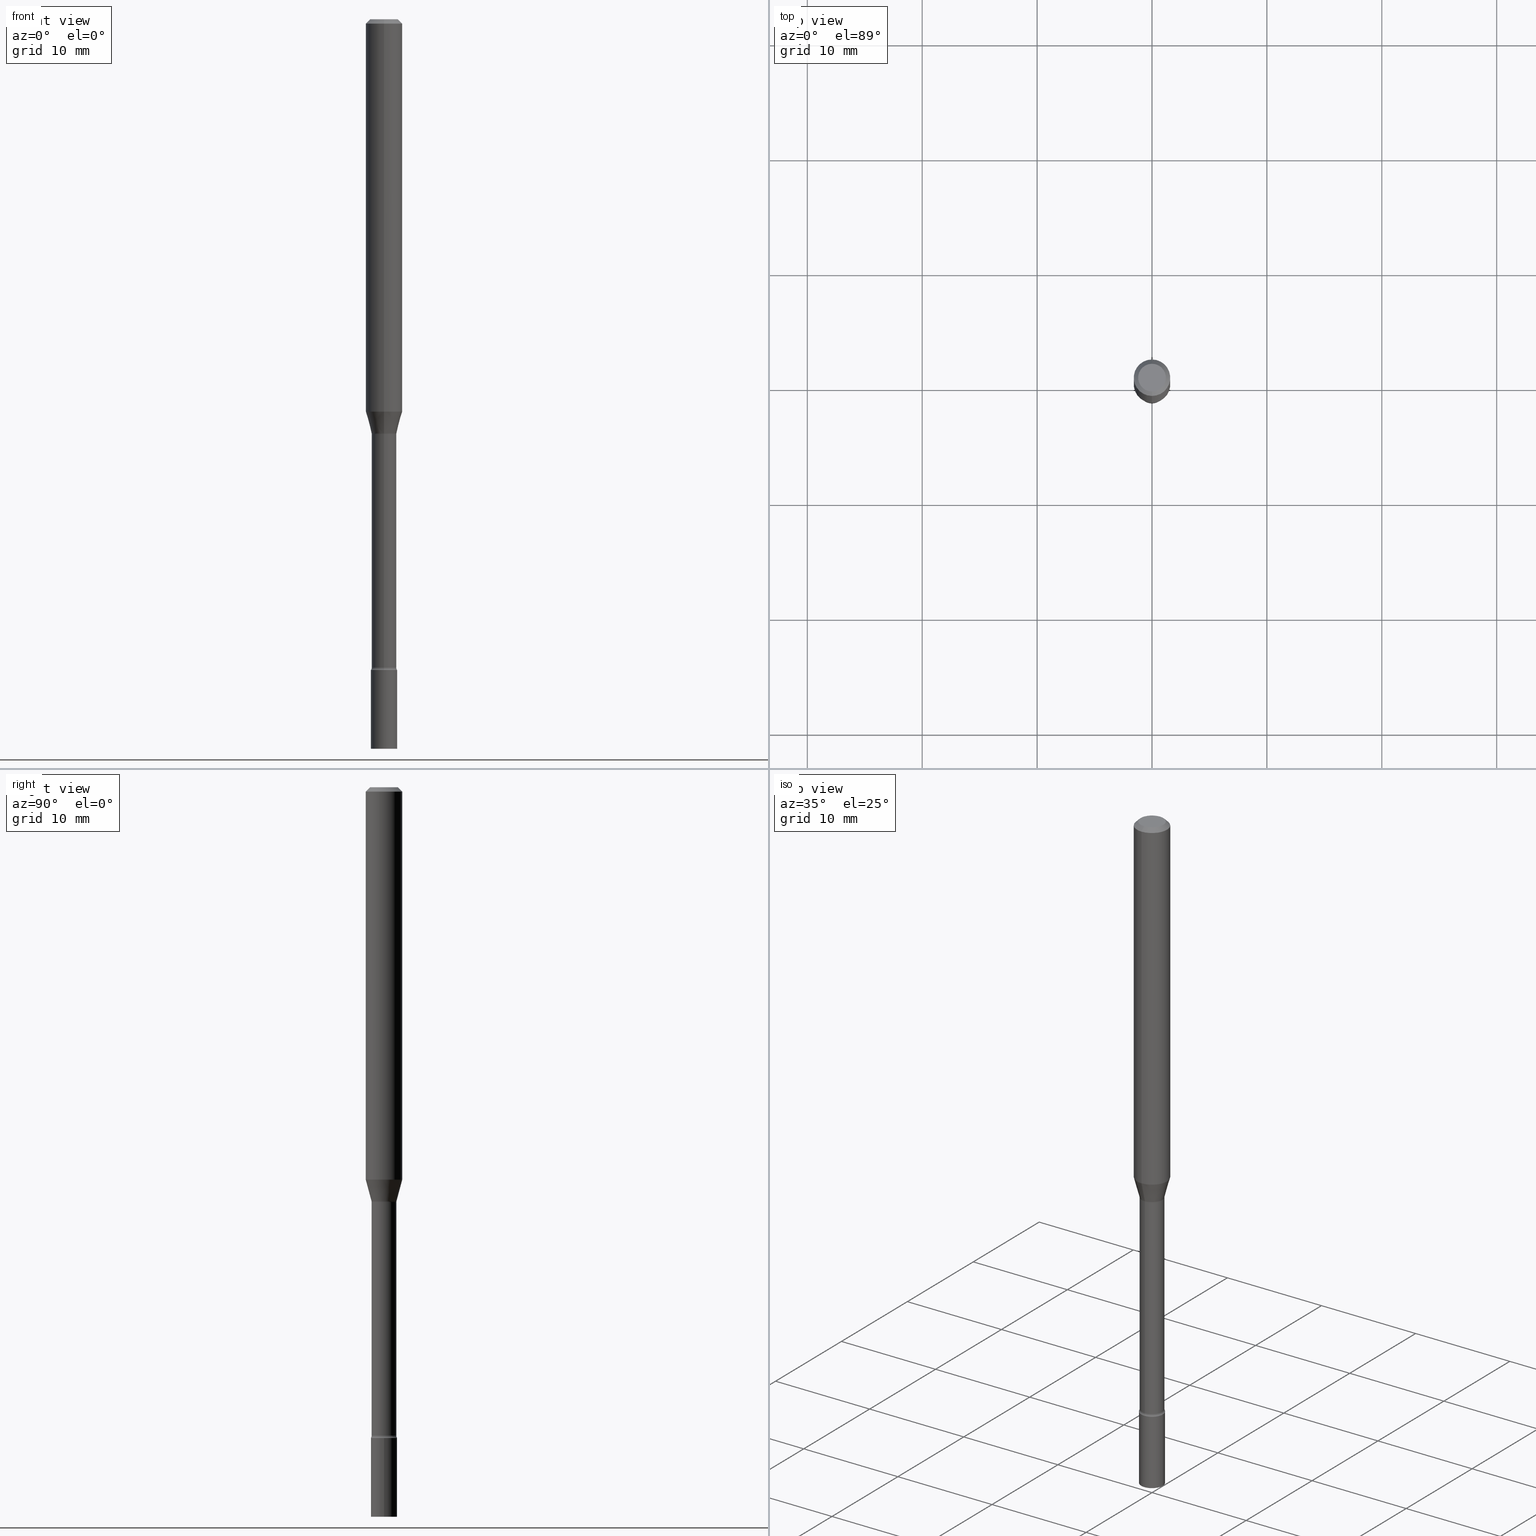
[diagram: canonical four-view strip — front | top / right | iso, engineering-drawing reading convention]
A machine part, canonical four-view strip (front | top / right | iso — engineering-drawing reading convention). The complete STEP part file that produces these views, byte-faithful:
ISO-10303-21;
HEADER;
FILE_DESCRIPTION (( 'STEP AP203' ),
    '1' );
FILE_NAME ('03501.STEP',
    '2024-03-08T21:33:59',
    ( '' ),
    ( '' ),
    'SwSTEP 2.0',
    'SolidWorks 2023',
    '' );
FILE_SCHEMA (( 'CONFIG_CONTROL_DESIGN' ));
ENDSEC;

DATA;
#1 = ORIENTED_EDGE ( 'NONE', *, *, #317, .T. ) ;
#2 = COORDINATED_UNIVERSAL_TIME_OFFSET ( 5, 0, .BEHIND. ) ;
#3 = DIRECTION ( 'NONE',  ( 1.000000000000000000, -7.105427357601001070E-15, 4.926315269028777843E-29 ) ) ;
#4 = VECTOR ( 'NONE', #292, 39.37007874015748143 ) ;
#5 = EDGE_LOOP ( 'NONE', ( #44, #252 ) ) ;
#6 = CYLINDRICAL_SURFACE ( 'NONE', #480, 0.04230000000000005977 ) ;
#7 = LOCAL_TIME ( 16, 33, 59.00000000000000000, #456 ) ;
#8 = PRODUCT ( '03501', '03501', '', ( #39 ) ) ;
#9 = DIRECTION ( 'NONE',  ( -6.982962677686265133E-15, -1.000000000000000000, 6.070773319253918263E-15 ) ) ;
#10 = FACE_OUTER_BOUND ( 'NONE', #149, .T. ) ;
#11 = FACE_OUTER_BOUND ( 'NONE', #374, .T. ) ;
#12 = DIRECTION ( 'NONE',  ( 1.000000000000000000, -6.982962677686266711E-15, 4.876176775795935793E-29 ) ) ;
#13 = EDGE_LOOP ( 'NONE', ( #116, #378, #35, #25 ) ) ;
#14 = EDGE_CURVE ( 'NONE', #295, #382, #409, .T. ) ;
#15 = CARTESIAN_POINT ( 'NONE',  ( -2.989484015155409328E-16, -0.04281111260566893700, -1.418092501787272974 ) ) ;
#16 = APPROVAL_PERSON_ORGANIZATION ( #177, #204, #262 ) ;
#17 = ORIENTED_EDGE ( 'NONE', *, *, #276, .T. ) ;
#18 = COORDINATED_UNIVERSAL_TIME_OFFSET ( 5, 0, .BEHIND. ) ;
#19 = VERTEX_POINT ( 'NONE', #390 ) ;
#20 = CIRCLE ( 'NONE', #96, 0.04281111260566398957 ) ;
#21 = AXIS2_PLACEMENT_3D ( 'NONE', #93, #340, #303 ) ;
#22 = DIRECTION ( 'NONE',  ( -6.982962677686265922E-15, -1.000000000000000000, 3.491461781097611808E-15 ) ) ;
#23 = EDGE_CURVE ( 'NONE', #290, #363, #511, .T. ) ;
#24 = DIRECTION ( 'NONE',  ( -2.445482463285848698E-29, 3.491461781097612203E-15, 1.000000000000000000 ) ) ;
#25 = ORIENTED_EDGE ( 'NONE', *, *, #354, .T. ) ;
#26 = CARTESIAN_POINT ( 'NONE',  ( 5.432430318834489549E-29, -7.755983991478533924E-15, -2.221414547187247734 ) ) ;
#27 = EDGE_CURVE ( 'NONE', #19, #164, #20, .T. ) ;
#28 = CARTESIAN_POINT ( 'NONE',  ( 3.477394985924490148E-29, -4.964798434735345074E-15, -1.421974787463811118 ) ) ;
#29 = CARTESIAN_POINT ( 'NONE',  ( 7.071073395498959108E-46, -1.009550584899653346E-31, -2.891483992078185001E-17 ) ) ;
#30 = DIRECTION ( 'NONE',  ( -6.982962677686266711E-15, -1.000000000000000000, 6.458269488567998169E-15 ) ) ;
#31 = AXIS2_PLACEMENT_3D ( 'NONE', #132, #446, #72 ) ;
#32 = ORIENTED_EDGE ( 'NONE', *, *, #88, .T. ) ;
#33 = CARTESIAN_POINT ( 'NONE',  ( -0.04499999999999999833, -7.937609135271993890E-15, -2.500000000000000000 ) ) ;
#34 = APPLICATION_CONTEXT ( 'configuration controlled 3d designs of mechanical parts and assemblies' ) ;
#35 = ORIENTED_EDGE ( 'NONE', *, *, #235, .T. ) ;
#36 = EDGE_CURVE ( 'NONE', #267, #387, #342, .T. ) ;
#37 = VERTEX_POINT ( 'NONE', #104 ) ;
#38 = LOCAL_TIME ( 16, 33, 59.00000000000000000, #136 ) ;
#39 = MECHANICAL_CONTEXT ( 'NONE', #34, 'mechanical' ) ;
#40 = VERTEX_POINT ( 'NONE', #273 ) ;
#41 = CARTESIAN_POINT ( 'NONE',  ( 0.000000000000000000, 0.000000000000000000, 0.000000000000000000 ) ) ;
#42 = ORIENTED_EDGE ( 'NONE', *, *, #14, .F. ) ;
#43 = FACE_OUTER_BOUND ( 'NONE', #101, .T. ) ;
#44 = ORIENTED_EDGE ( 'NONE', *, *, #271, .F. ) ;
#45 = APPROVAL_DATE_TIME ( #170, #280 ) ;
#46 = DIRECTION ( 'NONE',  ( -2.445482463285848698E-29, 3.491461781097612203E-15, 1.000000000000000000 ) ) ;
#47 = CARTESIAN_POINT ( 'NONE',  ( 3.668223694928780264E-31, -5.237192671646429323E-17, -0.01500000000000003067 ) ) ;
#48 = ORIENTED_EDGE ( 'NONE', *, *, #23, .T. ) ;
#49 = EDGE_CURVE ( 'NONE', #295, #493, #471, .T. ) ;
#50 = VECTOR ( 'NONE', #505, 39.37007874015748143 ) ;
#51 = VECTOR ( 'NONE', #122, 39.37007874015748854 ) ;
#52 = LOCAL_TIME ( 16, 33, 59.00000000000000000, #18 ) ;
#53 = FACE_OUTER_BOUND ( 'NONE', #329, .T. ) ;
#54 = LENGTH_MEASURE_WITH_UNIT ( LENGTH_MEASURE( 0.02539999999999999897 ), #121 );
#55 = PERSON_AND_ORGANIZATION_ROLE ( 'design_supplier' ) ;
#56 = CIRCLE ( 'NONE', #351, 0.04230000000000012222 ) ;
#57 = CARTESIAN_POINT ( 'NONE',  ( -2.989484015155409328E-16, -0.04281111260566893700, -1.418092501787272974 ) ) ;
#58 = AXIS2_PLACEMENT_3D ( 'NONE', #94, #144, #298 ) ;
#59 = CARTESIAN_POINT ( 'NONE',  ( 4.440892098500625669E-16, 0.06250000000000000000, -2.182163613186007380E-16 ) ) ;
#60 = ORIENTED_EDGE ( 'NONE', *, *, #315, .T. ) ;
#61 = DIRECTION ( 'NONE',  ( -6.982962677686265922E-15, -1.000000000000000000, 3.491461781097612203E-15 ) ) ;
#62 = EDGE_LOOP ( 'NONE', ( #308, #243, #359, #275 ) ) ;
#63 = AXIS2_PLACEMENT_3D ( 'NONE', #284, #113, #474 ) ;
#64 = CARTESIAN_POINT ( 'NONE',  ( 5.453395437792854252E-29, -7.786003385620215150E-15, -2.229999999999999982 ) ) ;
#65 = DIRECTION ( 'NONE',  ( -6.982962677686265922E-15, -1.000000000000000000, 3.491461781097612203E-15 ) ) ;
#66 = ORIENTED_EDGE ( 'NONE', *, *, #36, .T. ) ;
#67 = ORIENTED_EDGE ( 'NONE', *, *, #271, .T. ) ;
#68 = CIRCLE ( 'NONE', #218, 0.04230000000000012222 ) ;
#69 = DIRECTION ( 'NONE',  ( -2.445482463285848698E-29, 3.491461781097612203E-15, 1.000000000000000000 ) ) ;
#70 = ORIENTED_EDGE ( 'NONE', *, *, #368, .T. ) ;
#71 = CIRCLE ( 'NONE', #437, 0.04229999999999999732 ) ;
#72 = DIRECTION ( 'NONE',  ( -6.982962677686265922E-15, -1.000000000000000000, 3.491461781097612203E-15 ) ) ;
#73 = VERTEX_POINT ( 'NONE', #434 ) ;
#74 = EDGE_LOOP ( 'NONE', ( #249, #246, #189, #501 ) ) ;
#75 = APPROVAL_STATUS ( 'not_yet_approved' ) ;
#76 = DIRECTION ( 'NONE',  ( -2.445482463285848698E-29, 3.491461781097612203E-15, 1.000000000000000000 ) ) ;
#77 = DIRECTION ( 'NONE',  ( -2.445468806185136877E-29, 3.491481338843145188E-15, 1.000000000000000000 ) ) ;
#78 = AXIS2_PLACEMENT_3D ( 'NONE', #422, #313, #92 ) ;
#79 = EDGE_CURVE ( 'NONE', #477, #363, #444, .T. ) ;
#80 = CARTESIAN_POINT ( 'NONE',  ( 0.04499999999999999833, -8.100236706116096837E-15, -2.229999999999999982 ) ) ;
#81 = CARTESIAN_POINT ( 'NONE',  ( 3.288226468865476248E-29, -4.694663411411839177E-15, -1.344612573687109069 ) ) ;
#82 = PLANE ( 'NONE',  #468 ) ;
#83 = CLOSED_SHELL ( 'NONE', ( #140, #242, #508, #227, #135, #465, #118, #426, #155, #309, #397, #168, #499, #174 ) ) ;
#84 = ORIENTED_EDGE ( 'NONE', *, *, #516, .T. ) ;
#85 = AXIS2_PLACEMENT_3D ( 'NONE', #334, #128, #454 ) ;
#86 = DIRECTION ( 'NONE',  ( -6.982962677686265922E-15, -1.000000000000000000, 3.483106191921935554E-15 ) ) ;
#87 = DATE_AND_TIME ( #304, #38 ) ;
#88 = EDGE_CURVE ( 'NONE', #119, #493, #139, .T. ) ;
#89 = DATE_AND_TIME ( #307, #52 ) ;
#90 = DESIGN_CONTEXT ( 'detailed design', #391, 'design' ) ;
#91 = EDGE_CURVE ( 'NONE', #450, #40, #68, .T. ) ;
#92 = DIRECTION ( 'NONE',  ( 6.982962677686265922E-15, 1.000000000000000000, -3.483106191921935554E-15 ) ) ;
#93 = CARTESIAN_POINT ( 'NONE',  ( -4.001237614313693228E-16, -0.05730000000000785854, -2.221414547187247290 ) ) ;
#94 = CARTESIAN_POINT ( 'NONE',  ( 3.467920344437932478E-29, -4.951215772051361777E-15, -1.418092501787273196 ) ) ;
#95 = DIRECTION ( 'NONE',  ( -6.982962677686265922E-15, -1.000000000000000000, 6.458269488567979236E-15 ) ) ;
#96 = AXIS2_PLACEMENT_3D ( 'NONE', #398, #356, #196 ) ;
#97 = TOROIDAL_SURFACE ( 'NONE', #423, 0.05730000000000009391, 0.01499999999999997169 ) ;
#98 = FACE_OUTER_BOUND ( 'NONE', #319, .T. ) ;
#99 = APPLICATION_PROTOCOL_DEFINITION ( 'international standard', 'config_control_design', 1994, #391 ) ;
#100 = CIRCLE ( 'NONE', #188, 0.06250000000000000000 ) ;
#101 = EDGE_LOOP ( 'NONE', ( #124, #484, #394, #219 ) ) ;
#102 = FACE_OUTER_BOUND ( 'NONE', #459, .T. ) ;
#103 = EDGE_CURVE ( 'NONE', #73, #452, #424, .T. ) ;
#104 = CARTESIAN_POINT ( 'NONE',  ( -3.142333204958272057E-16, -0.04500000000000777683, -2.229999999999999538 ) ) ;
#105 = DIRECTION ( 'NONE',  ( 1.000000000000000000, -7.105427357601001070E-15, 4.926315269028777843E-29 ) ) ;
#106 = EDGE_LOOP ( 'NONE', ( #181, #473, #48, #141 ) ) ;
#107 = DIRECTION ( 'NONE',  ( -1.000000000000000000, 6.982962677686265922E-15, -4.876176775795935793E-29 ) ) ;
#108 = AXIS2_PLACEMENT_3D ( 'NONE', #151, #282, #396 ) ;
#109 = CARTESIAN_POINT ( 'NONE',  ( 0.000000000000000000, 0.000000000000000000, 0.000000000000000000 ) ) ;
#110 = ORIENTED_EDGE ( 'NONE', *, *, #250, .F. ) ;
#111 = EDGE_CURVE ( 'NONE', #382, #295, #349, .T. ) ;
#112 = DATE_AND_TIME ( #357, #297 ) ;
#113 = DIRECTION ( 'NONE',  ( -2.445482463285848698E-29, 3.491461781097612203E-15, 1.000000000000000000 ) ) ;
#114 = DIMENSIONAL_EXPONENTS ( 1.000000000000000000, 0.000000000000000000, 0.000000000000000000, 0.000000000000000000, 0.000000000000000000, 0.000000000000000000, 0.000000000000000000 ) ;
#115 = FACE_OUTER_BOUND ( 'NONE', #199, .T. ) ;
#116 = ORIENTED_EDGE ( 'NONE', *, *, #276, .F. ) ;
#117 = CIRCLE ( 'NONE', #433, 0.06250000000000000000 ) ;
#118 = ADVANCED_FACE ( 'NONE', ( #152 ), #129, .T. ) ;
#119 = VERTEX_POINT ( 'NONE', #515 ) ;
#120 = AXIS2_PLACEMENT_3D ( 'NONE', #399, #325, #476 ) ;
#121 =( LENGTH_UNIT ( ) NAMED_UNIT ( * ) SI_UNIT ( $, .METRE. ) );
#122 = DIRECTION ( 'NONE',  ( -1.807323732225332111E-15, -0.2588190451025184635, 0.9659258262890689783 ) ) ;
#123 = CC_DESIGN_DATE_AND_TIME_ASSIGNMENT ( #379, #375, ( #254 ) ) ;
#124 = ORIENTED_EDGE ( 'NONE', *, *, #317, .F. ) ;
#125 = CALENDAR_DATE ( 2024, 8, 3 ) ;
#126 = ORIENTED_EDGE ( 'NONE', *, *, #195, .F. ) ;
#127 = PERSON_AND_ORGANIZATION ( #482, #404 ) ;
#128 = DIRECTION ( 'NONE',  ( -2.445482463285848698E-29, 3.491461781097612203E-15, 1.000000000000000000 ) ) ;
#129 = CONICAL_SURFACE ( 'NONE', #63, 0.04281111260566398957, 0.2617993877991505736 ) ;
#130 = ADVANCED_FACE ( 'NONE', ( #146 ), #229, .T. ) ;
#131 =( GEOMETRIC_REPRESENTATION_CONTEXT ( 3 ) GLOBAL_UNCERTAINTY_ASSIGNED_CONTEXT ( ( #412 ) ) GLOBAL_UNIT_ASSIGNED_CONTEXT ( ( #311, #494, #224 ) ) REPRESENTATION_CONTEXT ( 'NONE', 'WORKASPACE' ) );
#132 = CARTESIAN_POINT ( 'NONE',  ( 5.432399980752294225E-29, -7.756027437338970612E-15, -2.221414547187247734 ) ) ;
#133 = SECURITY_CLASSIFICATION_LEVEL ( 'unclassified' ) ;
#134 = DIRECTION ( 'NONE',  ( -6.982962677686265922E-15, -1.000000000000000000, 3.491461781097612203E-15 ) ) ;
#135 = ADVANCED_FACE ( 'NONE', ( #274 ), #503, .T. ) ;
#136 = COORDINATED_UNIVERSAL_TIME_OFFSET ( 5, 0, .BEHIND. ) ;
#137 = AXIS2_PLACEMENT_3D ( 'NONE', #109, #148, #277 ) ;
#138 = CC_DESIGN_APPROVAL ( #240, ( #254 ) ) ;
#139 = LINE ( 'NONE', #310, #244 ) ;
#140 = ADVANCED_FACE ( 'NONE', ( #385 ), #472, .F. ) ;
#141 = ORIENTED_EDGE ( 'NONE', *, *, #79, .F. ) ;
#142 = APPLICATION_PROTOCOL_DEFINITION ( 'international standard', 'config_control_design', 1994, #34 ) ;
#143 = VECTOR ( 'NONE', #241, 39.37007874015748143 ) ;
#144 = DIRECTION ( 'NONE',  ( -2.445482463285848698E-29, 3.491461781097612203E-15, 1.000000000000000000 ) ) ;
#145 = CC_DESIGN_PERSON_AND_ORGANIZATION_ASSIGNMENT ( #210, #485, ( #496 ) ) ;
#146 = FACE_OUTER_BOUND ( 'NONE', #106, .T. ) ;
#147 = CARTESIAN_POINT ( 'NONE',  ( 7.071073395498959108E-46, -1.009550584899653346E-31, -2.891483992078185001E-17 ) ) ;
#148 = DIRECTION ( 'NONE',  ( -2.445482463285848698E-29, 3.491461781097612203E-15, 1.000000000000000000 ) ) ;
#149 = EDGE_LOOP ( 'NONE', ( #283, #17, #445, #479 ) ) ;
#150 = EDGE_LOOP ( 'NONE', ( #263, #414, #470, #238 ) ) ;
#151 = CARTESIAN_POINT ( 'NONE',  ( -4.001237614313882555E-16, -0.05730000000000497196, -1.421974787463810896 ) ) ;
#152 = FACE_OUTER_BOUND ( 'NONE', #440, .T. ) ;
#153 = EDGE_LOOP ( 'NONE', ( #365, #406, #367, #158 ) ) ;
#154 = ORIENTED_EDGE ( 'NONE', *, *, #103, .F. ) ;
#155 = ADVANCED_FACE ( 'NONE', ( #464 ), #197, .T. ) ;
#156 = APPROVAL_ROLE ( '' ) ;
#157 = DIRECTION ( 'NONE',  ( -2.445482463285848698E-29, 3.491461781097612203E-15, 1.000000000000000000 ) ) ;
#158 = ORIENTED_EDGE ( 'NONE', *, *, #436, .T. ) ;
#159 = DIRECTION ( 'NONE',  ( -2.445482463285848698E-29, 3.491461781097612203E-15, 1.000000000000000000 ) ) ;
#160 = CIRCLE ( 'NONE', #400, 0.01499999999999996822 ) ;
#161 = PLANE ( 'NONE',  #296 ) ;
#162 = CIRCLE ( 'NONE', #420, 0.04281111260566398957 ) ;
#163 = DIRECTION ( 'NONE',  ( 2.445482463285848138E-29, -3.491461781097612203E-15, -1.000000000000000000 ) ) ;
#164 = VERTEX_POINT ( 'NONE', #57 ) ;
#165 = CARTESIAN_POINT ( 'NONE',  ( -0.04499999999999999833, -7.937609135271993890E-15, -2.229999999999999982 ) ) ;
#166 = DIRECTION ( 'NONE',  ( -6.982962677686265922E-15, -1.000000000000000000, 6.458269488567979236E-15 ) ) ;
#167 = LINE ( 'NONE', #337, #306 ) ;
#168 = ADVANCED_FACE ( 'NONE', ( #236 ), #97, .F. ) ;
#169 = ORIENTED_EDGE ( 'NONE', *, *, #14, .T. ) ;
#170 = DATE_AND_TIME ( #410, #7 ) ;
#171 = CC_DESIGN_APPROVAL ( #280, ( #496 ) ) ;
#172 = LINE ( 'NONE', #451, #4 ) ;
#173 = ADVANCED_FACE ( 'NONE', ( #98 ), #185, .T. ) ;
#174 = ADVANCED_FACE ( 'NONE', ( #469 ), #268, .F. ) ;
#175 = CIRCLE ( 'NONE', #21, 0.01499999999999996822 ) ;
#176 = AXIS2_PLACEMENT_3D ( 'NONE', #305, #460, #341 ) ;
#177 = PERSON_AND_ORGANIZATION ( #482, #404 ) ;
#178 = CARTESIAN_POINT ( 'NONE',  ( 5.453395437792854252E-29, -7.786003385620215150E-15, -2.229999999999999982 ) ) ;
#179 = CARTESIAN_POINT ( 'NONE',  ( 3.005595772265769882E-16, 0.04229999999999502908, -1.421974787463811563 ) ) ;
#180 = PERSON_AND_ORGANIZATION_ROLE ( 'design_owner' ) ;
#181 = ORIENTED_EDGE ( 'NONE', *, *, #220, .F. ) ;
#182 = ADVANCED_FACE ( 'NONE', ( #388 ), #239, .T. ) ;
#183 = DIRECTION ( 'NONE',  ( -2.445482463285848698E-29, 3.491461781097612203E-15, 1.000000000000000000 ) ) ;
#184 = CIRCLE ( 'NONE', #478, 0.06250000000000000000 ) ;
#185 = PLANE ( 'NONE',  #343 ) ;
#186 = CYLINDRICAL_SURFACE ( 'NONE', #137, 0.04230000000000005977 ) ;
#187 = CARTESIAN_POINT ( 'NONE',  ( 4.071409875905923573E-16, 0.05729999999999233623, -2.221414547187248179 ) ) ;
#188 = AXIS2_PLACEMENT_3D ( 'NONE', #81, #76, #380 ) ;
#189 = ORIENTED_EDGE ( 'NONE', *, *, #368, .F. ) ;
#190 = DIRECTION ( 'NONE',  ( 2.445482463285848698E-29, -3.491461781097612203E-15, -1.000000000000000000 ) ) ;
#191 = LINE ( 'NONE', #265, #487 ) ;
#192 = CARTESIAN_POINT ( 'NONE',  ( -3.773273898774340269E-16, -0.04749999999999999362, 1.369295946813547119E-16 ) ) ;
#193 = ORIENTED_EDGE ( 'NONE', *, *, #27, .T. ) ;
#194 = FACE_OUTER_BOUND ( 'NONE', #326, .T. ) ;
#195 = EDGE_CURVE ( 'NONE', #164, #387, #234, .T. ) ;
#196 = DIRECTION ( 'NONE',  ( -6.982962677686265133E-15, -1.000000000000000000, 6.381165607227957288E-15 ) ) ;
#197 = CONICAL_SURFACE ( 'NONE', #78, 0.06250000000000000000, 0.7853981633974483900 ) ;
#198 = CIRCLE ( 'NONE', #338, 0.01500000000000001853 ) ;
#199 = EDGE_LOOP ( 'NONE', ( #154, #517, #32, #332 ) ) ;
#200 = PERSON_AND_ORGANIZATION ( #482, #404 ) ;
#201 = DIRECTION ( 'NONE',  ( 1.000000000000000000, -6.982962677686246989E-15, 0.000000000000000000 ) ) ;
#202 = ORIENTED_EDGE ( 'NONE', *, *, #331, .T. ) ;
#203 = APPROVAL_DATE_TIME ( #112, #240 ) ;
#204 = APPROVAL ( #497, 'UNSPECIFIED' ) ;
#205 = CARTESIAN_POINT ( 'NONE',  ( 4.071409875905721427E-16, 0.05729999999999503546, -1.421974787463811563 ) ) ;
#206 = DIRECTION ( 'NONE',  ( 6.982962677686265922E-15, 1.000000000000000000, -3.491461781097612203E-15 ) ) ;
#207 = ORIENTED_EDGE ( 'NONE', *, *, #354, .F. ) ;
#208 = AXIS2_PLACEMENT_3D ( 'NONE', #28, #322, #65 ) ;
#209 = VERTEX_POINT ( 'NONE', #33 ) ;
#210 = PERSON_AND_ORGANIZATION ( #482, #404 ) ;
#211 = SECURITY_CLASSIFICATION ( '', '', #133 ) ;
#212 = DIRECTION ( 'NONE',  ( -2.445482463285848698E-29, 3.491461781097612203E-15, 1.000000000000000000 ) ) ;
#213 = ADVANCED_FACE ( 'NONE', ( #194 ), #360, .T. ) ;
#214 = ORIENTED_EDGE ( 'NONE', *, *, #510, .F. ) ;
#215 = PERSON_AND_ORGANIZATION ( #482, #404 ) ;
#216 = CC_DESIGN_DATE_AND_TIME_ASSIGNMENT ( #87, #223, ( #211 ) ) ;
#217 = LINE ( 'NONE', #247, #447 ) ;
#218 = AXIS2_PLACEMENT_3D ( 'NONE', #26, #183, #95 ) ;
#219 = ORIENTED_EDGE ( 'NONE', *, *, #36, .F. ) ;
#220 = EDGE_CURVE ( 'NONE', #209, #477, #167, .T. ) ;
#221 = MANIFOLD_SOLID_BREP ( 'Body-Move/Copy2[1]', #495 ) ;
#222 = CARTESIAN_POINT ( 'NONE',  ( -2.953793212660942943E-16, -0.04230000000000496557, -1.421974787463810896 ) ) ;
#223 = DATE_TIME_ROLE ( 'classification_date' ) ;
#224 =( NAMED_UNIT ( * ) SI_UNIT ( $, .STERADIAN. ) SOLID_ANGLE_UNIT ( ) );
#225 = APPROVAL_DATE_TIME ( #89, #204 ) ;
#226 = CONICAL_SURFACE ( 'NONE', #384, 0.06250000000000000000, 0.7853981633974483900 ) ;
#227 = ADVANCED_FACE ( 'NONE', ( #504 ), #226, .T. ) ;
#228 = DIRECTION ( 'NONE',  ( -2.445468806185136597E-29, 3.491481338843145583E-15, 1.000000000000000000 ) ) ;
#229 = CYLINDRICAL_SURFACE ( 'NONE', #281, 0.04499999999999999833 ) ;
#230 = DIRECTION ( 'NONE',  ( 1.000000000000000000, -6.982962677686269077E-15, 0.000000000000000000 ) ) ;
#231 = DIRECTION ( 'NONE',  ( 6.982962677686265922E-15, 1.000000000000000000, -3.483106191921935554E-15 ) ) ;
#232 = ORIENTED_EDGE ( 'NONE', *, *, #299, .F. ) ;
#233 = AXIS2_PLACEMENT_3D ( 'NONE', #64, #228, #230 ) ;
#234 = CIRCLE ( 'NONE', #108, 0.01500000000000001853 ) ;
#235 = EDGE_CURVE ( 'NONE', #40, #37, #175, .T. ) ;
#236 = FACE_OUTER_BOUND ( 'NONE', #13, .T. ) ;
#237 = CARTESIAN_POINT ( 'NONE',  ( 0.04499999999999999833, -9.042936667603745051E-15, -2.500000000000000000 ) ) ;
#238 = ORIENTED_EDGE ( 'NONE', *, *, #315, .F. ) ;
#239 = PLANE ( 'NONE',  #321 ) ;
#240 = APPROVAL ( #519, 'UNSPECIFIED' ) ;
#241 = DIRECTION ( 'NONE',  ( -2.445468806185136877E-29, 3.491481338843145188E-15, 1.000000000000000000 ) ) ;
#242 = ADVANCED_FACE ( 'NONE', ( #102 ), #186, .T. ) ;
#243 = ORIENTED_EDGE ( 'NONE', *, *, #111, .F. ) ;
#244 = VECTOR ( 'NONE', #463, 39.37007874015748143 ) ;
#245 = CIRCLE ( 'NONE', #120, 0.04499999999999999833 ) ;
#246 = ORIENTED_EDGE ( 'NONE', *, *, #103, .T. ) ;
#247 = CARTESIAN_POINT ( 'NONE',  ( 4.364351673553919652E-16, 0.06249999999999995143, -0.01500000000000024751 ) ) ;
#248 = CARTESIAN_POINT ( 'NONE',  ( 0.000000000000000000, 0.000000000000000000, 0.000000000000000000 ) ) ;
#249 = ORIENTED_EDGE ( 'NONE', *, *, #491, .T. ) ;
#250 = EDGE_CURVE ( 'NONE', #40, #387, #191, .T. ) ;
#251 = CIRCLE ( 'NONE', #453, 0.04499999999999999833 ) ;
#252 = ORIENTED_EDGE ( 'NONE', *, *, #371, .F. ) ;
#253 = DIRECTION ( 'NONE',  ( -2.445468806185136597E-29, 3.491481338843145583E-15, 1.000000000000000000 ) ) ;
#254 = PRODUCT_DEFINITION ( 'UNKNOWN', '', #496, #90 ) ;
#255 = CARTESIAN_POINT ( 'NONE',  ( 3.668223694928780264E-31, -5.237192671646429323E-17, -0.01500000000000003067 ) ) ;
#256 = CARTESIAN_POINT ( 'NONE',  ( 3.142333204959364630E-16, 0.04499999999999221290, -2.230000000000000426 ) ) ;
#257 = CIRCLE ( 'NONE', #176, 0.04499999999999999833 ) ;
#258 = FACE_OUTER_BOUND ( 'NONE', #150, .T. ) ;
#259 = ORIENTED_EDGE ( 'NONE', *, *, #27, .F. ) ;
#260 = TOROIDAL_SURFACE ( 'NONE', #31, 0.05730000000000009391, 0.01499999999999997169 ) ;
#261 = DIRECTION ( 'NONE',  ( -2.445468806185136597E-29, 3.491481338843145583E-15, 1.000000000000000000 ) ) ;
#262 = APPROVAL_ROLE ( '' ) ;
#263 = ORIENTED_EDGE ( 'NONE', *, *, #458, .T. ) ;
#264 = DIRECTION ( 'NONE',  ( -2.445482463285848698E-29, 3.491461781097612203E-15, 1.000000000000000000 ) ) ;
#265 = CARTESIAN_POINT ( 'NONE',  ( -2.953793212661294972E-16, -0.04230000000000005977, 1.476888333404292139E-16 ) ) ;
#266 = VECTOR ( 'NONE', #427, 39.37007874015748143 ) ;
#267 = VERTEX_POINT ( 'NONE', #179 ) ;
#268 = TOROIDAL_SURFACE ( 'NONE', #208, 0.05730000000000000371, 0.01500000000000002373 ) ;
#269 = DIRECTION ( 'NONE',  ( 1.000000000000000000, -6.982962677686265922E-15, 4.876176775795935793E-29 ) ) ;
#270 = APPROVAL_PERSON_ORGANIZATION ( #369, #280, #333 ) ;
#271 = EDGE_CURVE ( 'NONE', #290, #209, #330, .T. ) ;
#272 = PERSON_AND_ORGANIZATION ( #482, #404 ) ;
#273 = CARTESIAN_POINT ( 'NONE',  ( -2.953793212660755588E-16, -0.04230000000000787991, -2.221414547187247290 ) ) ;
#274 = FACE_OUTER_BOUND ( 'NONE', #74, .T. ) ;
#275 = ORIENTED_EDGE ( 'NONE', *, *, #348, .T. ) ;
#276 = EDGE_CURVE ( 'NONE', #450, #442, #160, .T. ) ;
#277 = DIRECTION ( 'NONE',  ( -6.982962677686266711E-15, -1.000000000000000000, 3.491461781097612597E-15 ) ) ;
#278 = CARTESIAN_POINT ( 'NONE',  ( 3.477414405977372104E-29, -4.964770624114296457E-15, -1.421974787463811118 ) ) ;
#279 = CYLINDRICAL_SURFACE ( 'NONE', #355, 0.06250000000000000000 ) ;
#280 = APPROVAL ( #75, 'UNSPECIFIED' ) ;
#281 = AXIS2_PLACEMENT_3D ( 'NONE', #428, #253, #488 ) ;
#282 = DIRECTION ( 'NONE',  ( -1.000000000000000000, 6.982962677686265922E-15, -4.883557194083112901E-29 ) ) ;
#283 = ORIENTED_EDGE ( 'NONE', *, *, #91, .F. ) ;
#284 = CARTESIAN_POINT ( 'NONE',  ( 3.467920344437932478E-29, -4.951215772051361777E-15, -1.418092501787273196 ) ) ;
#285 = DIRECTION ( 'NONE',  ( 1.839019923739602287E-15, 0.2588190451025252359, 0.9659258262890670910 ) ) ;
#286 = CC_DESIGN_PERSON_AND_ORGANIZATION_ASSIGNMENT ( #419, #300, ( #211 ) ) ;
#287 = CARTESIAN_POINT ( 'NONE',  ( 0.000000000000000000, 0.000000000000000000, 0.000000000000000000 ) ) ;
#288 = ORIENTED_EDGE ( 'NONE', *, *, #220, .T. ) ;
#289 = CC_DESIGN_SECURITY_CLASSIFICATION ( #211, ( #496 ) ) ;
#290 = VERTEX_POINT ( 'NONE', #237 ) ;
#291 = DIRECTION ( 'NONE',  ( 7.105427357601001859E-15, 1.000000000000000000, 0.000000000000000000 ) ) ;
#292 = DIRECTION ( 'NONE',  ( -2.445482463285848698E-29, 3.491461781097612203E-15, 1.000000000000000000 ) ) ;
#293 = ORIENTED_EDGE ( 'NONE', *, *, #416, .T. ) ;
#294 = CARTESIAN_POINT ( 'NONE',  ( 3.316907271900976096E-16, 0.04749999999999999362, -1.803018545625274746E-16 ) ) ;
#295 = VERTEX_POINT ( 'NONE', #192 ) ;
#296 = AXIS2_PLACEMENT_3D ( 'NONE', #294, #163, #206 ) ;
#297 = LOCAL_TIME ( 16, 33, 59.00000000000000000, #327 ) ;
#298 = DIRECTION ( 'NONE',  ( -6.982962677686265133E-15, -1.000000000000000000, 6.381165607227957288E-15 ) ) ;
#299 = EDGE_CURVE ( 'NONE', #442, #37, #251, .T. ) ;
#300 = PERSON_AND_ORGANIZATION_ROLE ( 'classification_officer' ) ;
#301 = CC_DESIGN_PERSON_AND_ORGANIZATION_ASSIGNMENT ( #200, #180, ( #8 ) ) ;
#302 = CARTESIAN_POINT ( 'NONE',  ( 0.000000000000000000, 0.000000000000000000, 0.000000000000000000 ) ) ;
#303 = DIRECTION ( 'NONE',  ( -6.982962677686266711E-15, -1.000000000000000000, 0.000000000000000000 ) ) ;
#304 = CALENDAR_DATE ( 2024, 8, 3 ) ;
#305 = CARTESIAN_POINT ( 'NONE',  ( 6.113672015462842613E-29, -8.728703347107864943E-15, -2.500000000000000000 ) ) ;
#306 = VECTOR ( 'NONE', #77, 39.37007874015748143 ) ;
#307 = CALENDAR_DATE ( 2024, 8, 3 ) ;
#308 = ORIENTED_EDGE ( 'NONE', *, *, #49, .F. ) ;
#309 = ADVANCED_FACE ( 'NONE', ( #11 ), #161, .F. ) ;
#310 = CARTESIAN_POINT ( 'NONE',  ( -4.364351673553916201E-16, -0.06250000000000000000, 2.182163613186007380E-16 ) ) ;
#311 =( CONVERSION_BASED_UNIT ( 'INCH', #54 ) LENGTH_UNIT ( ) NAMED_UNIT ( #114 ) );
#312 = DIRECTION ( 'NONE',  ( -2.445482463285848698E-29, 3.491461781097612203E-15, 1.000000000000000000 ) ) ;
#313 = DIRECTION ( 'NONE',  ( 2.445482463285848698E-29, -3.491461781097612203E-15, -1.000000000000000000 ) ) ;
#314 = CARTESIAN_POINT ( 'NONE',  ( 3.668223694928780264E-31, -5.237192671646429323E-17, -0.01500000000000003067 ) ) ;
#315 = EDGE_CURVE ( 'NONE', #164, #119, #457, .T. ) ;
#316 = DIRECTION ( 'NONE',  ( -2.445482463285848698E-29, 3.491461781097612203E-15, 1.000000000000000000 ) ) ;
#317 = EDGE_CURVE ( 'NONE', #450, #267, #172, .T. ) ;
#318 = DIRECTION ( 'NONE',  ( -6.982962677686266711E-15, -1.000000000000000000, 6.458269488567998169E-15 ) ) ;
#319 = EDGE_LOOP ( 'NONE', ( #293, #408 ) ) ;
#320 = DIRECTION ( 'NONE',  ( -6.982962677686265922E-15, -1.000000000000000000, 3.491461781097611808E-15 ) ) ;
#321 = AXIS2_PLACEMENT_3D ( 'NONE', #438, #512, #107 ) ;
#322 = DIRECTION ( 'NONE',  ( -2.445482463285848698E-29, 3.491461781097612203E-15, 1.000000000000000000 ) ) ;
#323 = DIRECTION ( 'NONE',  ( -6.982962677686266711E-15, -1.000000000000000000, 3.491461781097612992E-15 ) ) ;
#324 = EDGE_LOOP ( 'NONE', ( #42, #490, #70, #214 ) ) ;
#325 = DIRECTION ( 'NONE',  ( -2.445468806185136597E-29, 3.491481338843145583E-15, 1.000000000000000000 ) ) ;
#326 = EDGE_LOOP ( 'NONE', ( #67, #288, #448, #352 ) ) ;
#327 = COORDINATED_UNIVERSAL_TIME_OFFSET ( 5, 0, .BEHIND. ) ;
#328 = DIRECTION ( 'NONE',  ( -6.982962677686265133E-15, -1.000000000000000000, 6.381165607227957288E-15 ) ) ;
#329 = EDGE_LOOP ( 'NONE', ( #207, #232 ) ) ;
#330 = CIRCLE ( 'NONE', #514, 0.04499999999999999833 ) ;
#331 = EDGE_CURVE ( 'NONE', #40, #450, #56, .T. ) ;
#332 = ORIENTED_EDGE ( 'NONE', *, *, #348, .F. ) ;
#333 = APPROVAL_ROLE ( '' ) ;
#334 = CARTESIAN_POINT ( 'NONE',  ( 5.453425893127441894E-29, -7.785959771847674005E-15, -2.229999999999999982 ) ) ;
#335 = EDGE_LOOP ( 'NONE', ( #259, #84, #66, #126 ) ) ;
#336 = AXIS2_PLACEMENT_3D ( 'NONE', #302, #261, #12 ) ;
#337 = CARTESIAN_POINT ( 'NONE',  ( -0.04499999999999999833, 3.197442310920450718E-16, -2.213520790614707560E-30 ) ) ;
#338 = AXIS2_PLACEMENT_3D ( 'NONE', #205, #3, #291 ) ;
#339 = CARTESIAN_POINT ( 'NONE',  ( -4.364351673553912750E-16, -0.06250000000000005551, -0.01499999999999981209 ) ) ;
#340 = DIRECTION ( 'NONE',  ( -1.000000000000000000, 6.982962677686265922E-15, -4.883557194083112901E-29 ) ) ;
#341 = DIRECTION ( 'NONE',  ( 1.000000000000000000, -6.982962677686246989E-15, 0.000000000000000000 ) ) ;
#342 = CIRCLE ( 'NONE', #513, 0.04229999999999999732 ) ;
#343 = AXIS2_PLACEMENT_3D ( 'NONE', #178, #346, #269 ) ;
#344 = SHAPE_DEFINITION_REPRESENTATION ( #373, #381 ) ;
#345 = CC_DESIGN_PERSON_AND_ORGANIZATION_ASSIGNMENT ( #215, #481, ( #254 ) ) ;
#346 = DIRECTION ( 'NONE',  ( -2.438088387897960049E-29, 3.491481338843145188E-15, 1.000000000000000000 ) ) ;
#347 = ORIENTED_EDGE ( 'NONE', *, *, #405, .F. ) ;
#348 = EDGE_CURVE ( 'NONE', #452, #493, #117, .T. ) ;
#349 = CIRCLE ( 'NONE', #362, 0.04749999999999999362 ) ;
#350 = DIRECTION ( 'NONE',  ( 0.000000000000000000, 0.000000000000000000, 1.000000000000000000 ) ) ;
#351 = AXIS2_PLACEMENT_3D ( 'NONE', #449, #413, #166 ) ;
#352 = ORIENTED_EDGE ( 'NONE', *, *, #23, .F. ) ;
#353 = CARTESIAN_POINT ( 'NONE',  ( 0.000000000000000000, 0.000000000000000000, 0.000000000000000000 ) ) ;
#354 = EDGE_CURVE ( 'NONE', #37, #442, #418, .T. ) ;
#355 = AXIS2_PLACEMENT_3D ( 'NONE', #287, #366, #320 ) ;
#356 = DIRECTION ( 'NONE',  ( -2.445482463285848698E-29, 3.491461781097612203E-15, 1.000000000000000000 ) ) ;
#357 = CALENDAR_DATE ( 2024, 8, 3 ) ;
#358 = CARTESIAN_POINT ( 'NONE',  ( 5.453425893127441894E-29, -7.785959771847674005E-15, -2.229999999999999982 ) ) ;
#359 = ORIENTED_EDGE ( 'NONE', *, *, #510, .T. ) ;
#360 = CYLINDRICAL_SURFACE ( 'NONE', #336, 0.04499999999999999833 ) ;
#361 = CARTESIAN_POINT ( 'NONE',  ( -4.287811248607203282E-16, -0.06250000000000005551, -0.01499999999999981209 ) ) ;
#362 = AXIS2_PLACEMENT_3D ( 'NONE', #147, #316, #323 ) ;
#363 = VERTEX_POINT ( 'NONE', #80 ) ;
#364 = CIRCLE ( 'NONE', #461, 0.06250000000000000000 ) ;
#365 = ORIENTED_EDGE ( 'NONE', *, *, #516, .F. ) ;
#366 = DIRECTION ( 'NONE',  ( -2.445482463285848698E-29, 3.491461781097612203E-15, 1.000000000000000000 ) ) ;
#367 = ORIENTED_EDGE ( 'NONE', *, *, #195, .T. ) ;
#368 = EDGE_CURVE ( 'NONE', #493, #452, #184, .T. ) ;
#369 = PERSON_AND_ORGANIZATION ( #482, #404 ) ;
#370 = AXIS2_PLACEMENT_3D ( 'NONE', #353, #431, #22 ) ;
#371 = EDGE_CURVE ( 'NONE', #209, #290, #257, .T. ) ;
#372 = DIRECTION ( 'NONE',  ( -2.445482463285848698E-29, 3.491461781097612203E-15, 1.000000000000000000 ) ) ;
#373 = PRODUCT_DEFINITION_SHAPE ( 'NONE', 'NONE',  #254 ) ;
#374 = EDGE_LOOP ( 'NONE', ( #486, #169 ) ) ;
#375 = DATE_TIME_ROLE ( 'creation_date' ) ;
#376 = DIRECTION ( 'NONE',  ( -6.982962677686266711E-15, -1.000000000000000000, 3.491461781097612597E-15 ) ) ;
#377 = DIRECTION ( 'NONE',  ( -6.982962677686265922E-15, -1.000000000000000000, 3.483106191921935554E-15 ) ) ;
#378 = ORIENTED_EDGE ( 'NONE', *, *, #331, .F. ) ;
#379 = DATE_AND_TIME ( #125, #393 ) ;
#380 = DIRECTION ( 'NONE',  ( -6.982962677686265922E-15, -1.000000000000000000, 4.370956789862821150E-15 ) ) ;
#381 = ADVANCED_BREP_SHAPE_REPRESENTATION ( '03501', ( #221, #402, #455 ), #131 ) ;
#382 = VERTEX_POINT ( 'NONE', #421 ) ;
#383 = DIRECTION ( 'NONE',  ( -2.445482463285848138E-29, 3.491461781097612203E-15, 1.000000000000000000 ) ) ;
#384 = AXIS2_PLACEMENT_3D ( 'NONE', #314, #190, #231 ) ;
#385 = FACE_OUTER_BOUND ( 'NONE', #335, .T. ) ;
#386 = DIRECTION ( 'NONE',  ( -6.982962677686266711E-15, -1.000000000000000000, 3.491461781097612992E-15 ) ) ;
#387 = VERTEX_POINT ( 'NONE', #222 ) ;
#388 = FACE_OUTER_BOUND ( 'NONE', #5, .T. ) ;
#389 = AXIS2_PLACEMENT_3D ( 'NONE', #498, #462, #392 ) ;
#390 = CARTESIAN_POINT ( 'NONE',  ( 3.741402302838760433E-16, 0.04281111260565903520, -1.418092501787273418 ) ) ;
#391 = APPLICATION_CONTEXT ( 'configuration controlled 3d designs of mechanical parts and assemblies' ) ;
#392 = DIRECTION ( 'NONE',  ( -6.982962677686265922E-15, -1.000000000000000000, 3.491461781097612203E-15 ) ) ;
#393 = LOCAL_TIME ( 16, 33, 59.00000000000000000, #2 ) ;
#394 = ORIENTED_EDGE ( 'NONE', *, *, #250, .T. ) ;
#395 = CARTESIAN_POINT ( 'NONE',  ( 4.440892098500956497E-16, 0.06249999999999993755, -0.01500000000000024751 ) ) ;
#396 = DIRECTION ( 'NONE',  ( -6.982962677686267499E-15, -1.000000000000000000, 0.000000000000000000 ) ) ;
#397 = ADVANCED_FACE ( 'NONE', ( #53 ), #82, .F. ) ;
#398 = CARTESIAN_POINT ( 'NONE',  ( 3.467920344437932478E-29, -4.951215772051361777E-15, -1.418092501787273196 ) ) ;
#399 = CARTESIAN_POINT ( 'NONE',  ( 5.453395437792854252E-29, -7.786003385620215150E-15, -2.229999999999999982 ) ) ;
#400 = AXIS2_PLACEMENT_3D ( 'NONE', #187, #105, #432 ) ;
#401 = ORIENTED_EDGE ( 'NONE', *, *, #483, .F. ) ;
#402 = MANIFOLD_SOLID_BREP ( 'Body-Move/Copy2[2]', #83 ) ;
#403 = DIRECTION ( 'NONE',  ( 1.000000000000000000, 0.000000000000000000, 0.000000000000000000 ) ) ;
#404 = ORGANIZATION ( 'UNSPECIFIED', 'UNSPECIFIED', '' ) ;
#405 = EDGE_CURVE ( 'NONE', #19, #73, #492, .T. ) ;
#406 = ORIENTED_EDGE ( 'NONE', *, *, #458, .F. ) ;
#407 = DIRECTION ( 'NONE',  ( 4.937700262164548042E-15, 0.7071067811865451302, -0.7071067811865499042 ) ) ;
#408 = ORIENTED_EDGE ( 'NONE', *, *, #79, .T. ) ;
#409 = CIRCLE ( 'NONE', #502, 0.04749999999999999362 ) ;
#410 = CALENDAR_DATE ( 2024, 8, 3 ) ;
#411 = CARTESIAN_POINT ( 'NONE',  ( 3.288226468865476248E-29, -4.694663411411839177E-15, -1.344612573687109069 ) ) ;
#412 = UNCERTAINTY_MEASURE_WITH_UNIT (LENGTH_MEASURE( 1.000000000000000082E-05 ), #311, 'distance_accuracy_value', 'NONE');
#413 = DIRECTION ( 'NONE',  ( -2.445482463285848698E-29, 3.491461781097612203E-15, 1.000000000000000000 ) ) ;
#414 = ORIENTED_EDGE ( 'NONE', *, *, #405, .T. ) ;
#415 = DIRECTION ( 'NONE',  ( -2.445482463285848698E-29, 3.491461781097612203E-15, 1.000000000000000000 ) ) ;
#416 = EDGE_CURVE ( 'NONE', #363, #477, #245, .T. ) ;
#417 = DIRECTION ( 'NONE',  ( -6.982962677686265922E-15, -1.000000000000000000, 4.370956789862821150E-15 ) ) ;
#418 = CIRCLE ( 'NONE', #85, 0.04499999999999999833 ) ;
#419 = PERSON_AND_ORGANIZATION ( #482, #404 ) ;
#420 = AXIS2_PLACEMENT_3D ( 'NONE', #520, #157, #328 ) ;
#421 = CARTESIAN_POINT ( 'NONE',  ( 3.840629472727447874E-16, 0.04749999999999999362, -1.947592745229184365E-16 ) ) ;
#422 = CARTESIAN_POINT ( 'NONE',  ( 3.668223694928780264E-31, -5.237192671646429323E-17, -0.01500000000000003067 ) ) ;
#423 = AXIS2_PLACEMENT_3D ( 'NONE', #507, #264, #61 ) ;
#424 = LINE ( 'NONE', #59, #50 ) ;
#425 = VECTOR ( 'NONE', #285, 39.37007874015748143 ) ;
#426 = ADVANCED_FACE ( 'NONE', ( #115 ), #279, .T. ) ;
#427 = DIRECTION ( 'NONE',  ( -4.851104656540964275E-15, -0.7071067811865500152, -0.7071067811865450192 ) ) ;
#428 = CARTESIAN_POINT ( 'NONE',  ( 0.000000000000000000, 0.000000000000000000, 0.000000000000000000 ) ) ;
#429 = ORIENTED_EDGE ( 'NONE', *, *, #436, .F. ) ;
#430 = CARTESIAN_POINT ( 'NONE',  ( 3.197442310920995032E-16, 0.04499999999999219208, -2.230000000000000426 ) ) ;
#431 = DIRECTION ( 'NONE',  ( -2.445482463285848698E-29, 3.491461781097612203E-15, 1.000000000000000000 ) ) ;
#432 = DIRECTION ( 'NONE',  ( 7.105427357601001859E-15, 1.000000000000000000, 0.000000000000000000 ) ) ;
#433 = AXIS2_PLACEMENT_3D ( 'NONE', #47, #212, #377 ) ;
#434 = CARTESIAN_POINT ( 'NONE',  ( 4.440892098500956497E-16, 0.06249999999999533706, -1.344612573687109514 ) ) ;
#435 = CARTESIAN_POINT ( 'NONE',  ( 3.101519041593385169E-16, 0.04229999999999235760, -2.221414547187248179 ) ) ;
#436 = EDGE_CURVE ( 'NONE', #387, #267, #71, .T. ) ;
#437 = AXIS2_PLACEMENT_3D ( 'NONE', #443, #69, #30 ) ;
#438 = CARTESIAN_POINT ( 'NONE',  ( 3.142333204959430697E-16, 0.04499999999999127615, -2.500000000000000000 ) ) ;
#439 = CONICAL_SURFACE ( 'NONE', #58, 0.04281111260566398957, 0.2617993877991505736 ) ;
#440 = EDGE_LOOP ( 'NONE', ( #347, #193, #60, #401 ) ) ;
#441 = PRODUCT_RELATED_PRODUCT_CATEGORY ( 'detail', '', ( #8 ) ) ;
#442 = VERTEX_POINT ( 'NONE', #430 ) ;
#443 = CARTESIAN_POINT ( 'NONE',  ( 3.477414405977372104E-29, -4.964770624114296457E-15, -1.421974787463811118 ) ) ;
#444 = CIRCLE ( 'NONE', #233, 0.04499999999999999833 ) ;
#445 = ORIENTED_EDGE ( 'NONE', *, *, #299, .T. ) ;
#446 = DIRECTION ( 'NONE',  ( -2.445482463285848698E-29, 3.491461781097612203E-15, 1.000000000000000000 ) ) ;
#447 = VECTOR ( 'NONE', #407, 39.37007874015748143 ) ;
#448 = ORIENTED_EDGE ( 'NONE', *, *, #416, .F. ) ;
#449 = CARTESIAN_POINT ( 'NONE',  ( 5.432430318834489549E-29, -7.755983991478533924E-15, -2.221414547187247734 ) ) ;
#450 = VERTEX_POINT ( 'NONE', #435 ) ;
#451 = CARTESIAN_POINT ( 'NONE',  ( 3.005595772265227540E-16, 0.04230000000000005977, -1.476888333404292139E-16 ) ) ;
#452 = VERTEX_POINT ( 'NONE', #395 ) ;
#453 = AXIS2_PLACEMENT_3D ( 'NONE', #358, #372, #9 ) ;
#454 = DIRECTION ( 'NONE',  ( -6.982962677686265133E-15, -1.000000000000000000, 6.070773319253918263E-15 ) ) ;
#455 = AXIS2_PLACEMENT_3D ( 'NONE', #248, #350, #403 ) ;
#456 = COORDINATED_UNIVERSAL_TIME_OFFSET ( 5, 0, .BEHIND. ) ;
#457 = LINE ( 'NONE', #15, #51 ) ;
#458 = EDGE_CURVE ( 'NONE', #164, #19, #162, .T. ) ;
#459 = EDGE_LOOP ( 'NONE', ( #202, #1, #429, #110 ) ) ;
#460 = DIRECTION ( 'NONE',  ( -2.445468806185136597E-29, 3.491481338843145583E-15, 1.000000000000000000 ) ) ;
#461 = AXIS2_PLACEMENT_3D ( 'NONE', #411, #46, #417 ) ;
#462 = DIRECTION ( 'NONE',  ( -2.445482463285848698E-29, 3.491461781097612203E-15, 1.000000000000000000 ) ) ;
#463 = DIRECTION ( 'NONE',  ( -2.445482463285848698E-29, 3.491461781097612203E-15, 1.000000000000000000 ) ) ;
#464 = FACE_OUTER_BOUND ( 'NONE', #62, .T. ) ;
#465 = ADVANCED_FACE ( 'NONE', ( #258 ), #439, .T. ) ;
#466 = DIRECTION ( 'NONE',  ( -2.445468806185136597E-29, 3.491481338843145583E-15, 1.000000000000000000 ) ) ;
#467 = DIRECTION ( 'NONE',  ( -2.445482463285848698E-29, 3.491461781097612203E-15, 1.000000000000000000 ) ) ;
#468 = AXIS2_PLACEMENT_3D ( 'NONE', #256, #383, #134 ) ;
#469 = FACE_OUTER_BOUND ( 'NONE', #153, .T. ) ;
#470 = ORIENTED_EDGE ( 'NONE', *, *, #491, .F. ) ;
#471 = LINE ( 'NONE', #361, #266 ) ;
#472 = TOROIDAL_SURFACE ( 'NONE', #389, 0.05730000000000000371, 0.01500000000000002373 ) ;
#473 = ORIENTED_EDGE ( 'NONE', *, *, #371, .T. ) ;
#474 = DIRECTION ( 'NONE',  ( -6.982962677686265133E-15, -1.000000000000000000, 6.381165607227957288E-15 ) ) ;
#475 = CARTESIAN_POINT ( 'NONE',  ( 3.041912507176566342E-16, 0.04281111260565903520, -1.418092501787273418 ) ) ;
#476 = DIRECTION ( 'NONE',  ( 1.000000000000000000, -6.982962677686269077E-15, 0.000000000000000000 ) ) ;
#477 = VERTEX_POINT ( 'NONE', #165 ) ;
#478 = AXIS2_PLACEMENT_3D ( 'NONE', #255, #415, #86 ) ;
#479 = ORIENTED_EDGE ( 'NONE', *, *, #235, .F. ) ;
#480 = AXIS2_PLACEMENT_3D ( 'NONE', #41, #159, #376 ) ;
#481 = PERSON_AND_ORGANIZATION_ROLE ( 'creator' ) ;
#482 = PERSON ( 'UNSPECIFIED', 'UNSPECIFIED', 'UNSPECIFIED', ('UNSPECIFIED'), ('UNSPECIFIED'), ('UNSPECIFIED') ) ;
#483 = EDGE_CURVE ( 'NONE', #73, #119, #100, .T. ) ;
#484 = ORIENTED_EDGE ( 'NONE', *, *, #91, .T. ) ;
#485 = PERSON_AND_ORGANIZATION_ROLE ( 'creator' ) ;
#486 = ORIENTED_EDGE ( 'NONE', *, *, #111, .T. ) ;
#487 = VECTOR ( 'NONE', #24, 39.37007874015748143 ) ;
#488 = DIRECTION ( 'NONE',  ( 1.000000000000000000, -6.982962677686266711E-15, 4.876176775795935793E-29 ) ) ;
#489 = APPROVAL_PERSON_ORGANIZATION ( #272, #240, #156 ) ;
#490 = ORIENTED_EDGE ( 'NONE', *, *, #49, .T. ) ;
#491 = EDGE_CURVE ( 'NONE', #119, #73, #364, .T. ) ;
#492 = LINE ( 'NONE', #475, #425 ) ;
#493 = VERTEX_POINT ( 'NONE', #339 ) ;
#494 =( NAMED_UNIT ( * ) PLANE_ANGLE_UNIT ( ) SI_UNIT ( $, .RADIAN. ) );
#495 = CLOSED_SHELL ( 'NONE', ( #213, #173, #130, #182 ) ) ;
#496 = PRODUCT_DEFINITION_FORMATION_WITH_SPECIFIED_SOURCE ( 'ANY', '', #8, .NOT_KNOWN. ) ;
#497 = APPROVAL_STATUS ( 'not_yet_approved' ) ;
#498 = CARTESIAN_POINT ( 'NONE',  ( 3.477394985924490148E-29, -4.964798434735345074E-15, -1.421974787463811118 ) ) ;
#499 = ADVANCED_FACE ( 'NONE', ( #43 ), #6, .T. ) ;
#500 = CARTESIAN_POINT ( 'NONE',  ( 6.113672015462842613E-29, -8.728703347107864943E-15, -2.500000000000000000 ) ) ;
#501 = ORIENTED_EDGE ( 'NONE', *, *, #88, .F. ) ;
#502 = AXIS2_PLACEMENT_3D ( 'NONE', #29, #312, #386 ) ;
#503 = CYLINDRICAL_SURFACE ( 'NONE', #370, 0.06250000000000000000 ) ;
#504 = FACE_OUTER_BOUND ( 'NONE', #324, .T. ) ;
#505 = DIRECTION ( 'NONE',  ( -2.445482463285848698E-29, 3.491461781097612203E-15, 1.000000000000000000 ) ) ;
#506 = CC_DESIGN_APPROVAL ( #204, ( #211 ) ) ;
#507 = CARTESIAN_POINT ( 'NONE',  ( 5.432399980752294225E-29, -7.756027437338970612E-15, -2.221414547187247734 ) ) ;
#508 = ADVANCED_FACE ( 'NONE', ( #10 ), #260, .F. ) ;
#509 = CARTESIAN_POINT ( 'NONE',  ( 0.04499999999999999833, -3.142333204958819823E-16, 2.194279549108170967E-30 ) ) ;
#510 = EDGE_CURVE ( 'NONE', #382, #452, #217, .T. ) ;
#511 = LINE ( 'NONE', #509, #143 ) ;
#512 = DIRECTION ( 'NONE',  ( 2.438088387897960049E-29, -3.491481338843145188E-15, -1.000000000000000000 ) ) ;
#513 = AXIS2_PLACEMENT_3D ( 'NONE', #278, #467, #318 ) ;
#514 = AXIS2_PLACEMENT_3D ( 'NONE', #500, #466, #201 ) ;
#515 = CARTESIAN_POINT ( 'NONE',  ( -4.364351673553584879E-16, -0.06250000000000466294, -1.344612573687108847 ) ) ;
#516 = EDGE_CURVE ( 'NONE', #19, #267, #198, .T. ) ;
#517 = ORIENTED_EDGE ( 'NONE', *, *, #483, .T. ) ;
#518 = CC_DESIGN_PERSON_AND_ORGANIZATION_ASSIGNMENT ( #127, #55, ( #496 ) ) ;
#519 = APPROVAL_STATUS ( 'not_yet_approved' ) ;
#520 = CARTESIAN_POINT ( 'NONE',  ( 3.467920344437932478E-29, -4.951215772051361777E-15, -1.418092501787273196 ) ) ;
ENDSEC;
END-ISO-10303-21;
